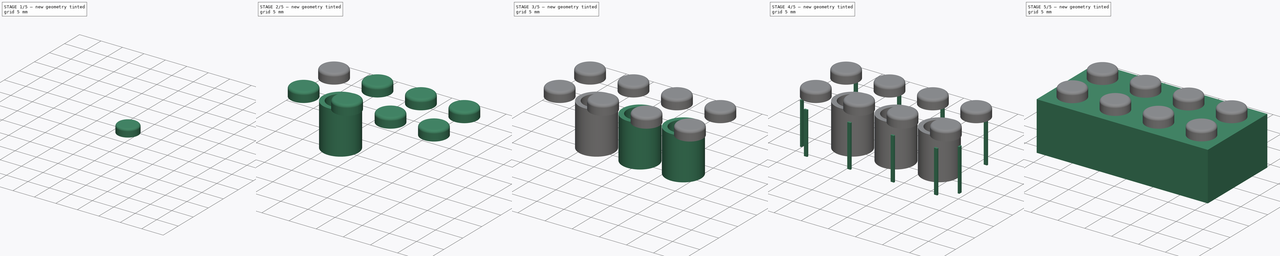
[diagram: build sequence overview — one tinted view per stage of 5, left to right]
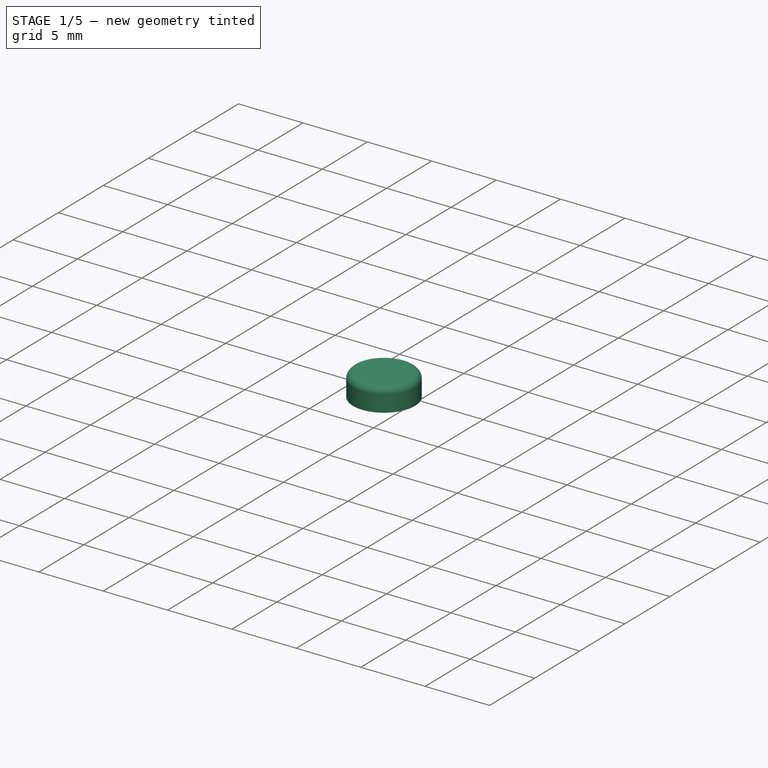
[diagram: stage 1 of 5 — iso view after this stage's code; geometry added in this stage tinted green]
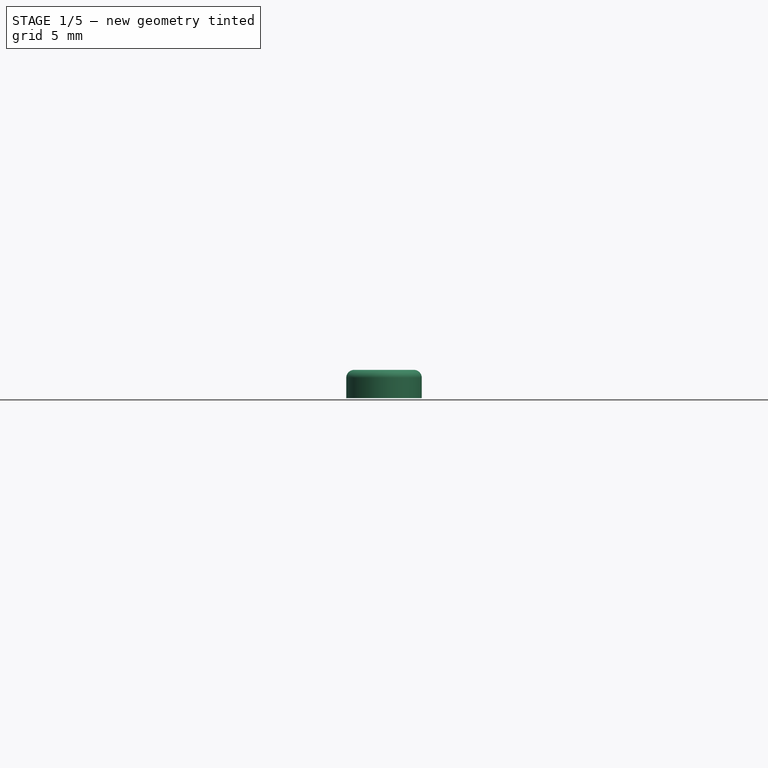
[diagram: stage 1 of 5 — front view after this stage's code; geometry added in this stage tinted green]
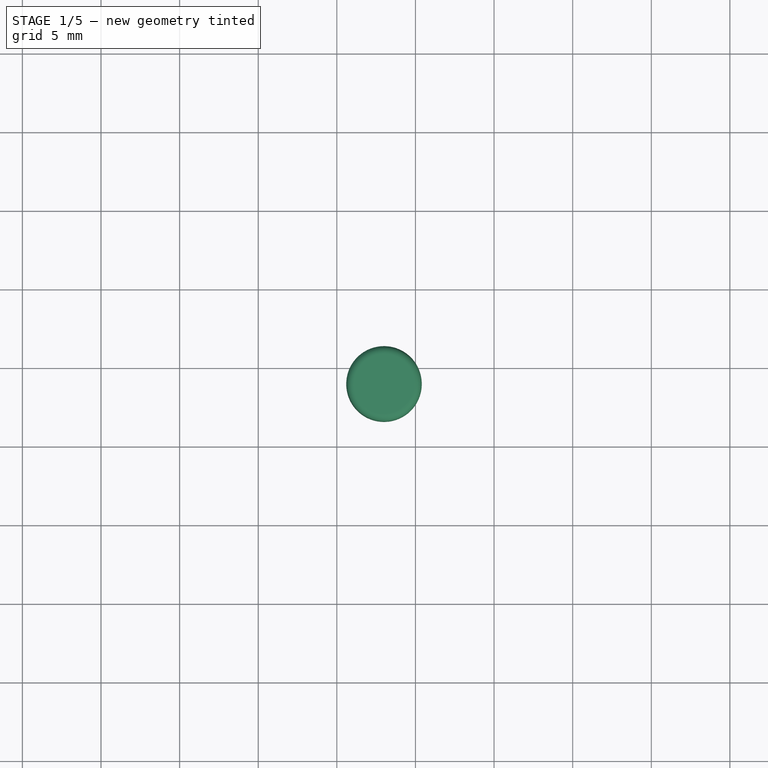
[diagram: stage 1 of 5 — top view after this stage's code; geometry added in this stage tinted green]
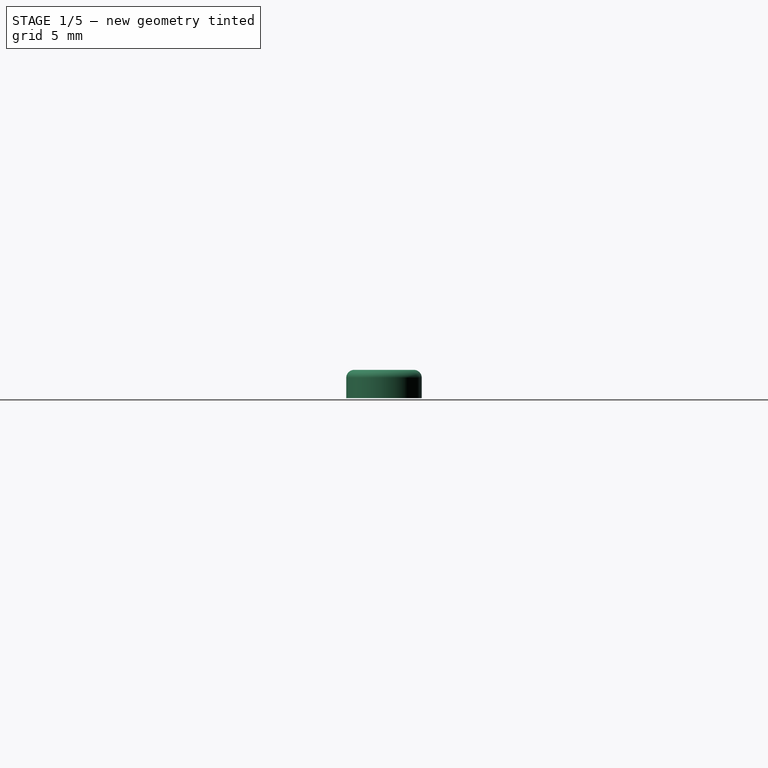
[diagram: stage 1 of 5 — right view after this stage's code; geometry added in this stage tinted green]
FCSTD DOCUMENT  (FreeCAD 0.20R29410 (Git))
Label: Parametric_Lego_Brick
License: All rights reserved
LicenseURL: http://en.wikipedia.org/wiki/All_rights_reserved
objects: Part::FeaturePython×17, Sketcher::SketchObject×5, Part::Extrusion×5, Spreadsheet::Sheet×1, Part::Thickness×1, Part::Fillet×1, Part::Compound×1
note: 30 computed .brp shape members not serialized (recipe doc carries the construction recipe); baked Part::Feature solids carry a one-line shape summary decoded from their .brp

FEATURE [Spreadsheet::Sheet] Spreadsheet
  cells = A1=LengthUnits; B1(LengthUnits)=4; C1=Length; D1(Length)==LengthUnits * HorizontalSpacing - LengthAdjustment; A2=WidthUnits; B2(WidthUnits)=2; C2=Width; D2(Width)==WidthUnits * HorizontalSpacing - LengthAdjustment; A3=HeightUnits; B3(HeightUnits)=3; C3=Height; D3(Height)==HeightUnits * VerticalSpacing; A4=HorizontalSpacing; B4(HorizontalSpacing)=8; A5=VerticalSpacing; B5(VerticalSpacing)=3; A7=LengthAdjustment; B7(LengthAdjustment)=0.2; C7=StudPlacement; D7(StudPlacement)=3.9; A8=Wall; B8(Wall)=1.2; C8=StudDiameter; D8(StudDiameter)=4.8; C9=StudHeight; D9(StudHeight)=1.8; A11=NubWidth; B11(NubWidth)=0.6; C11=TubeInner; D11(TubeInner)=4.8; A12=NubHeight; B12(NubHeight)=0.3; C12=TubeOuter; D12(TubeOuter)=6.5; A13=NubCenterToTopLeft; B13(NubCenterToTopLeft)=3.9; C13=TubePlacement; D13(TubePlacement)=7.9
FEATURE [Sketcher::SketchObject] Sketch
  FullyConstrained = true
  expr: Constraints[10] = Spreadsheet.Length
  expr: Constraints[11] = Spreadsheet.Width
  sketch-geometry (5):
    g0: LineSegment StartX=-15.9 StartY=7.9 StartZ=0 EndX=-15.9 EndY=-7.9 EndZ=0
    g1: LineSegment StartX=-15.9 StartY=-7.9 StartZ=0 EndX=15.9 EndY=-7.9 EndZ=0
    g2: LineSegment StartX=15.9 StartY=-7.9 StartZ=0 EndX=15.9 EndY=7.9 EndZ=0
    g3: LineSegment StartX=15.9 StartY=7.9 StartZ=0 EndX=-15.9 EndY=7.9 EndZ=0
    g4: GeomPoint X=0 Y=0 Z=0
  constraints (12):
    c: Coincident(g0,g1)
    c: Coincident(g1,g2)
    c: Coincident(g2,g3)
    c: Coincident(g3,g0)
    c: Horizontal(g1)
    c: Horizontal(g3)
    c: Vertical(g0)
    c: Vertical(g2)
    c: Symmetric(g1,g0,g4)
    c: Coincident(g4,g-1)
    c: DistanceX(g3,g3) = 31.8
    c: DistanceY(g2,g2) = 15.8
FEATURE [Part::Extrusion] Extrude
  Base = -> Sketch
  Dir = (0,0,1)
  DirMode = 2
  FaceMakerClass = Part::FaceMakerBullseye
  LengthFwd = 9
  LengthRev = 0
  Solid = true
  Symmetric = false
  expr: LengthFwd = Spreadsheet.Height
FEATURE [Part::Thickness] Thickness
  Faces = -> Extrude [Face5]
  Intersection = false
  Join = 0
  Mode = 0
  SelfIntersection = false
  Value = -1.2
  expr: Value = -Spreadsheet.Wall
FEATURE [Sketcher::SketchObject] Sketch001
  ExternalGeometry = -> [Thickness]
  FullyConstrained = true
  MapMode = 5
  Placement = pos=(0,0,9) rot=(0,0,1;0rad)
  Support = -> [Thickness]
  expr: Constraints[0] = Spreadsheet.StudPlacement
  expr: Constraints[1] = Spreadsheet.StudPlacement
  expr: Constraints[2] = Spreadsheet.StudDiameter
  sketch-geometry (1):
    g0: Circle CenterX=-12 CenterY=4 CenterZ=0 NormalX=0 NormalY=0 NormalZ=1 AngleXU=0 Radius=2.4
  constraints (3):
    c: DistanceY(g0,g-3) = 3.9
    c: DistanceX(g-3,g0) = 3.9
    c: Diameter(g0) = 4.8
FEATURE [Part::Extrusion] Extrude001
  Base = -> Sketch001
  Dir = (0,0,1)
  DirMode = 2
  FaceMakerClass = Part::FaceMakerBullseye
  LengthFwd = 1.8
  LengthRev = 0
  Solid = true
  Symmetric = false
  expr: LengthFwd = Spreadsheet.StudHeight
FEATURE [Part::Fillet] Fillet
  Base = -> Extrude001
  Edges = 1 edges r=0.5: [Edge3]
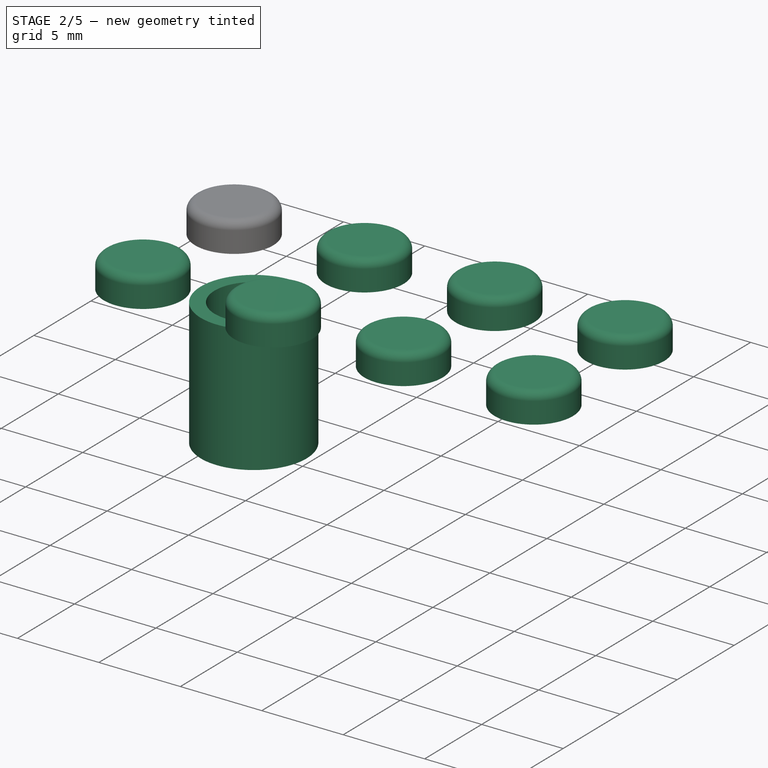
[diagram: stage 2 of 5 — iso view after this stage's code; geometry added in this stage tinted green]
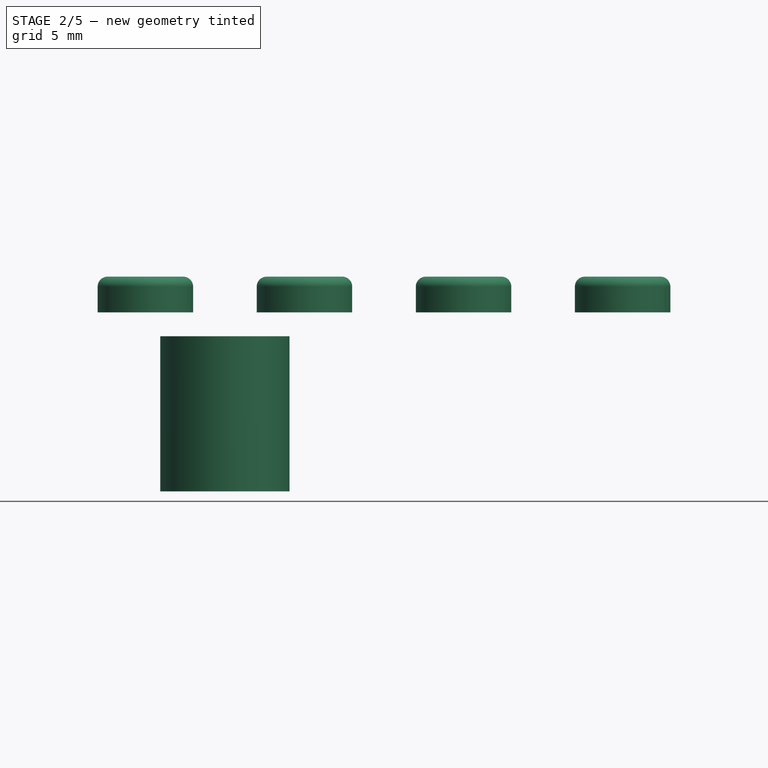
[diagram: stage 2 of 5 — front view after this stage's code; geometry added in this stage tinted green]
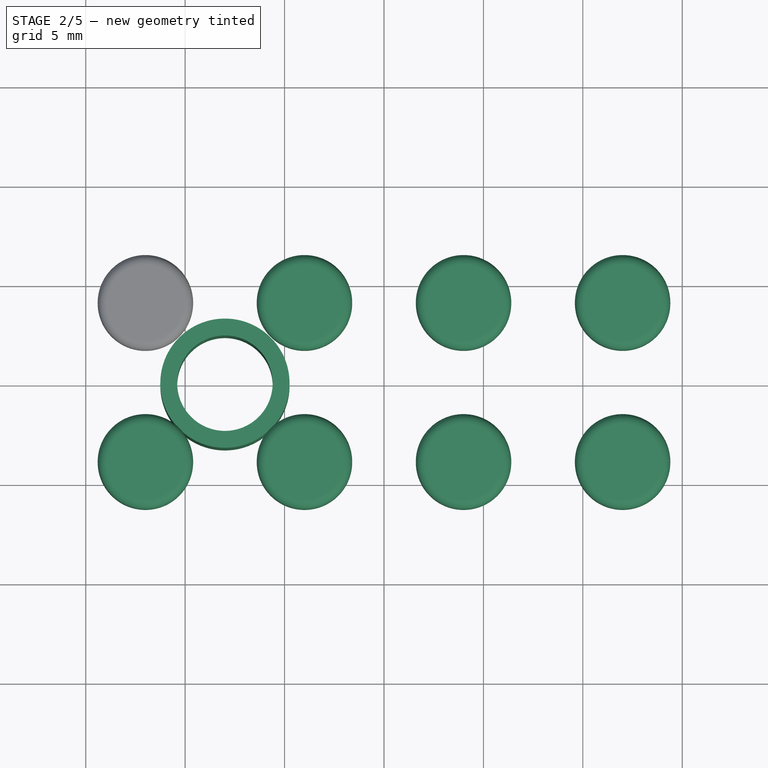
[diagram: stage 2 of 5 — top view after this stage's code; geometry added in this stage tinted green]
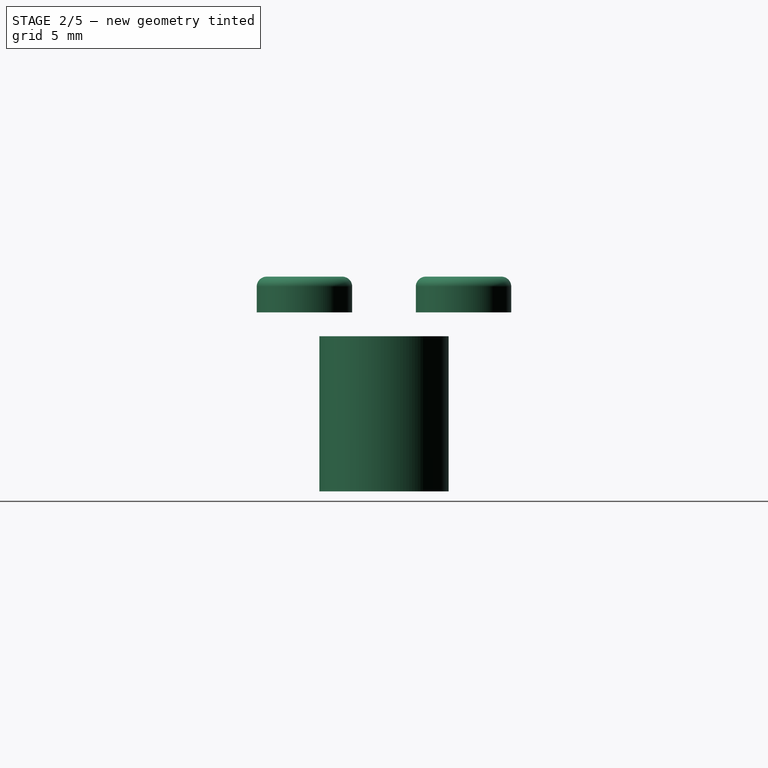
[diagram: stage 2 of 5 — right view after this stage's code; geometry added in this stage tinted green]
FEATURE [Part::FeaturePython] LinearArray  # WARN: FeaturePython — macro-defined, semantics opaque (R4)
  Alignment = 0
  CellStart = A1
  Count = 4
  Dir = (1,0,0)
  DirIsDriven = true
  DistributionLaw = 0
  DrivenProperty = 1
  EndInclusive = true
  ExposePlacement = false
  GeneratorMode = 0
  MarkerShape = 1
  MarkerSize = 0
  NumElements = 4
  OrientMode = 1
  Point = (0,0,0)
  PointIsDriven = true
  Reverse = false
  SpanEnd = 24
  SpanStart = 0
  Step = 8
  Type = lattice2LinearArray.LinearArray
  VSGVersion = 1
  Values = 0.0 | 8.0 | 16.0 | 24.0
  ValuesSource = 2
  isLattice = 1
  expr: Count = Spreadsheet.LengthUnits
  expr: SpanEnd = Spreadsheet.HorizontalSpacing * (Spreadsheet.LengthUnits - 1)
FEATURE [Part::FeaturePython] Populate  label="Populate LinearArray with Fillet"  # WARN: FeaturePython — macro-defined, semantics opaque (R4)
  Copying = 0
  ExposePlacement = false
  MarkerShape = 1
  MarkerSize = 0
  NumElements = 0
  Object = -> Fillet
  OutputCompounding = 1
  PlacementsTo = -> LinearArray
  Referencing = 1
  Type = lattice2PopulateCopies.LatticePopulateCopies
  isLattice = 0
FEATURE [Part::FeaturePython] LinearArray001  # WARN: FeaturePython — macro-defined, semantics opaque (R4)
  Alignment = 0
  CellStart = A1
  Count = 2
  Dir = (0,-1,0)
  DirIsDriven = true
  DistributionLaw = 0
  DrivenProperty = 1
  EndInclusive = true
  ExposePlacement = false
  GeneratorMode = 0
  MarkerShape = 1
  MarkerSize = 0
  NumElements = 2
  OrientMode = 1
  Point = (0,0,0)
  PointIsDriven = true
  Reverse = false
  SpanEnd = 8
  SpanStart = 0
  Step = 8
  Type = lattice2LinearArray.LinearArray
  VSGVersion = 1
  Values = 0.0 | 8.0
  ValuesSource = 2
  isLattice = 1
  expr: Count = Spreadsheet.WidthUnits
  expr: SpanEnd = Spreadsheet.HorizontalSpacing * (Spreadsheet.WidthUnits - 1)
FEATURE [Part::FeaturePython] Populate001  label="Studs"  # WARN: FeaturePython — macro-defined, semantics opaque (R4)
  Copying = 0
  ExposePlacement = false
  MarkerShape = 1
  MarkerSize = 0
  NumElements = 0
  Object = -> Populate
  OutputCompounding = 1
  PlacementsTo = -> LinearArray001
  Referencing = 1
  Type = lattice2PopulateCopies.LatticePopulateCopies
  isLattice = 0
FEATURE [Sketcher::SketchObject] Sketch002
  ExternalGeometry = -> [Thickness]
  FullyConstrained = true
  MapMode = 5
  Placement = pos=(0,0,7.8) rot=(1,0,0;3.14159rad)
  Support = -> [Thickness]
  expr: Constraints[0] = Spreadsheet.TubeInner
  expr: Constraints[1] = Spreadsheet.TubeOuter
  expr: Constraints[2] = Spreadsheet.TubePlacement
  expr: Constraints[3] = Spreadsheet.TubePlacement
  sketch-geometry (2):
    g0: Circle CenterX=-8 CenterY=0 CenterZ=0 NormalX=0 NormalY=0 NormalZ=1 AngleXU=0 Radius=3.25
    g1: Circle CenterX=-8 CenterY=0 CenterZ=0 NormalX=0 NormalY=0 NormalZ=1 AngleXU=0 Radius=2.4
  constraints (5):
    c: Diameter(g1) = 4.8
    c: Diameter(g0) = 6.5
    c: DistanceX(g-3,g0) = 7.9
    c: DistanceY(g0,g-3) = 7.9
    c: Coincident(g1,g0)
FEATURE [Part::Extrusion] Extrude002  label="TubeExtrude"
  Base = -> Sketch002
  Dir = (0,0,-7.8)
  DirLink = -> Thickness [Edge19]
  DirMode = 1
  FaceMakerClass = Part::FaceMakerBullseye
  LengthFwd = 0
  LengthRev = 0
  Solid = true
  Symmetric = false
FEATURE [Part::FeaturePython] Downgrade003  label="Leaves of Studs"  # WARN: FeaturePython — macro-defined, semantics opaque (R4)
  Base = -> Populate001
  Mode = 1
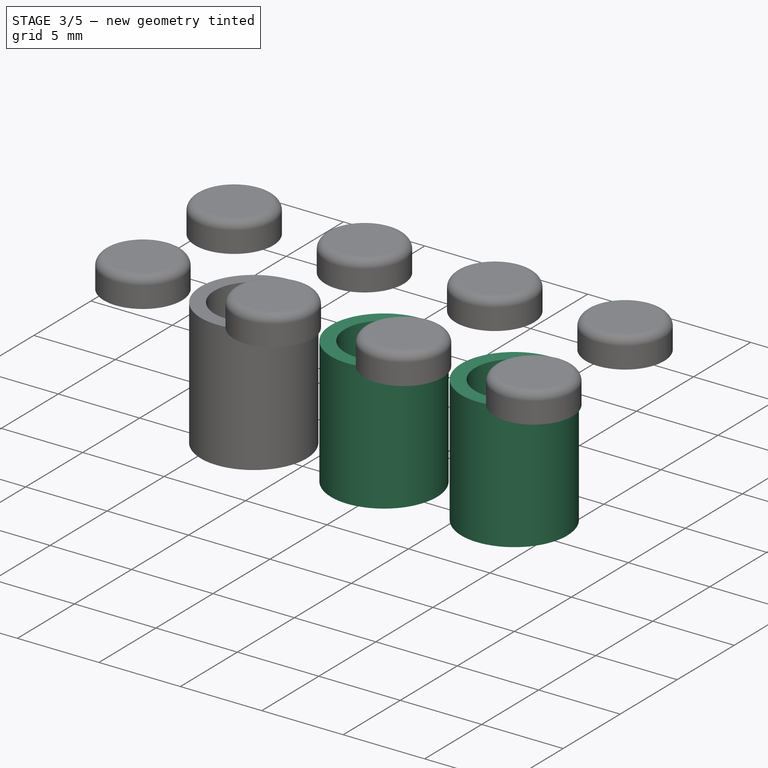
[diagram: stage 3 of 5 — iso view after this stage's code; geometry added in this stage tinted green]
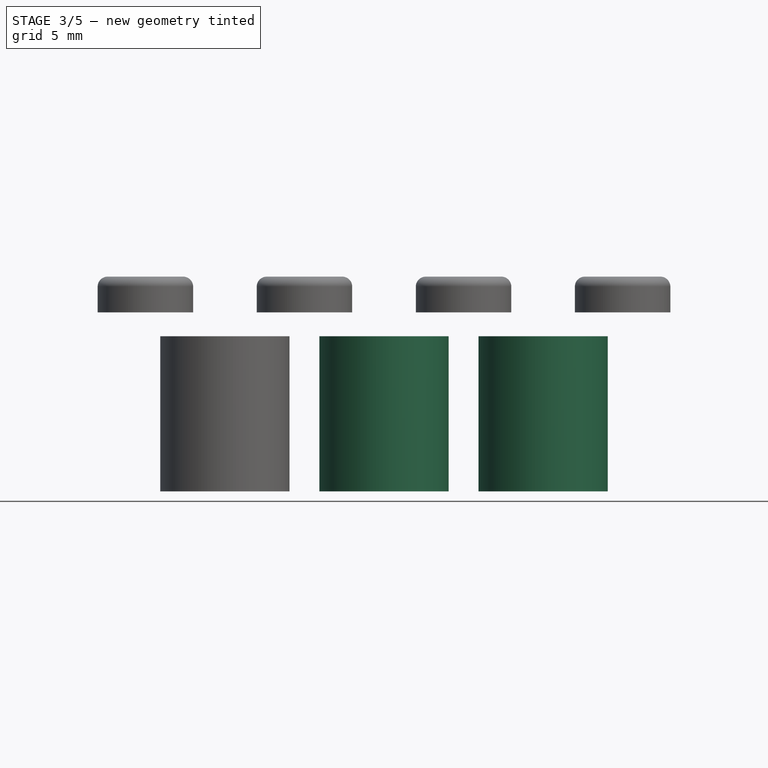
[diagram: stage 3 of 5 — front view after this stage's code; geometry added in this stage tinted green]
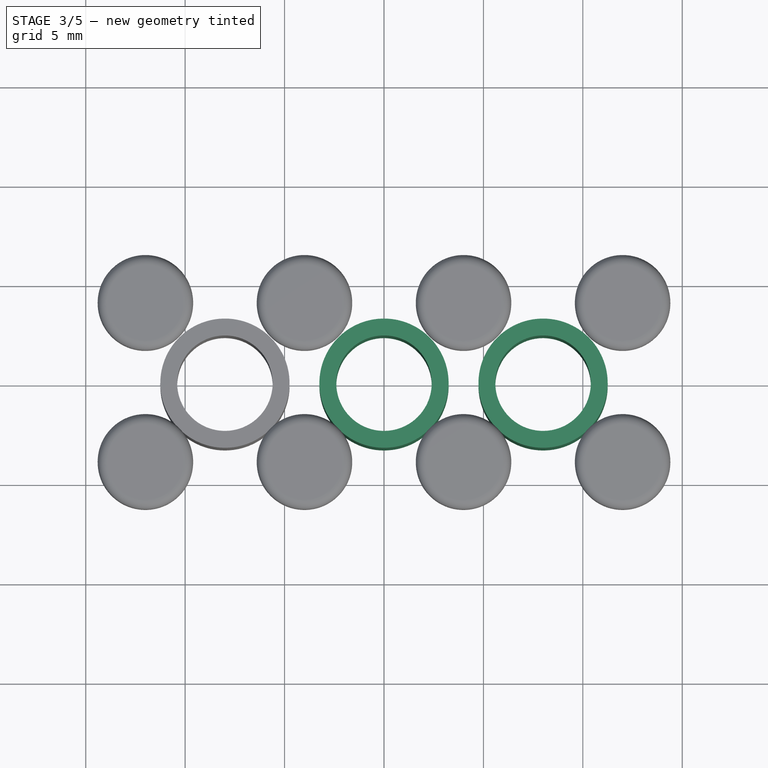
[diagram: stage 3 of 5 — top view after this stage's code; geometry added in this stage tinted green]
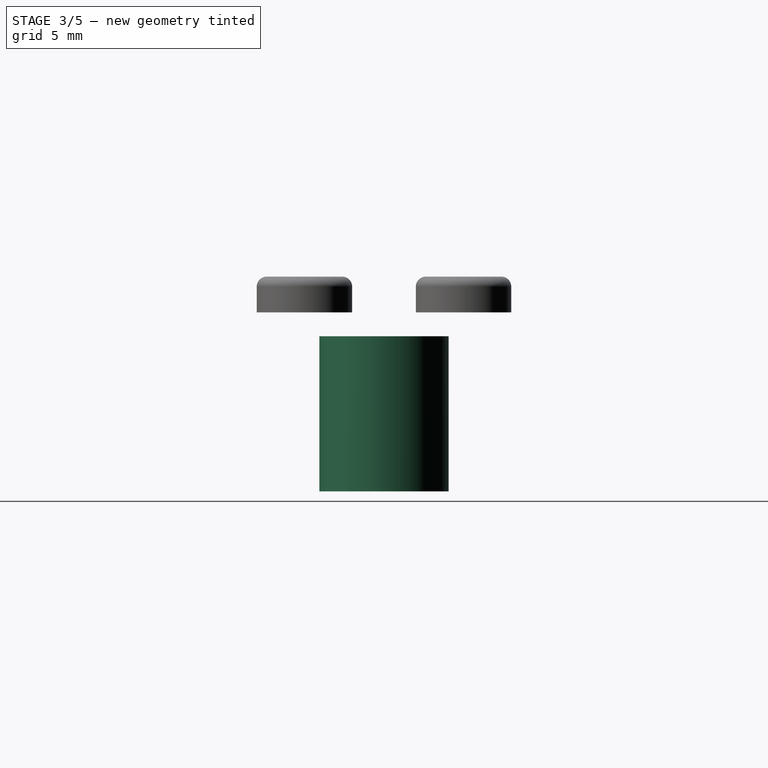
[diagram: stage 3 of 5 — right view after this stage's code; geometry added in this stage tinted green]
FEATURE [Part::FeaturePython] LinearArray002  # WARN: FeaturePython — macro-defined, semantics opaque (R4)
  Alignment = 0
  CellStart = A1
  Count = 1
  Dir = (0,1,0)
  DirIsDriven = true
  DistributionLaw = 0
  DrivenProperty = 1
  EndInclusive = true
  ExposePlacement = false
  GeneratorMode = 0
  MarkerShape = 1
  MarkerSize = 1
  NumElements = 1
  OrientMode = 1
  Point = (0,0,0)
  PointIsDriven = true
  Reverse = false
  SpanEnd = 0
  SpanStart = 0
  Step = 0
  Type = lattice2LinearArray.LinearArray
  VSGVersion = 1
  Values = 0.0
  ValuesSource = 2
  isLattice = 1
  expr: Count = Spreadsheet.WidthUnits - 1
  expr: SpanEnd = Spreadsheet.HorizontalSpacing * (Spreadsheet.WidthUnits - 2)
FEATURE [Part::FeaturePython] Populate002  label="Populate LinearArray002 with TubeExtrude"  # WARN: FeaturePython — macro-defined, semantics opaque (R4)
  Copying = 0
  ExposePlacement = false
  MarkerShape = 1
  MarkerSize = 0
  NumElements = 0
  Object = -> Extrude002
  OutputCompounding = 1
  PlacementsTo = -> LinearArray002
  Referencing = 1
  Type = lattice2PopulateCopies.LatticePopulateCopies
  isLattice = 0
FEATURE [Part::FeaturePython] LinearArray003  # WARN: FeaturePython — macro-defined, semantics opaque (R4)
  Alignment = 0
  CellStart = A1
  Count = 3
  Dir = (1,0,0)
  DirIsDriven = true
  DistributionLaw = 0
  DrivenProperty = 1
  EndInclusive = true
  ExposePlacement = false
  GeneratorMode = 0
  MarkerShape = 1
  MarkerSize = 5
  NumElements = 3
  OrientMode = 1
  Point = (0,0,0)
  PointIsDriven = true
  Reverse = false
  SpanEnd = 16
  SpanStart = 0
  Step = 8
  Type = lattice2LinearArray.LinearArray
  VSGVersion = 1
  Values = 0.0 | 8.0 | 16.0
  ValuesSource = 2
  isLattice = 1
  expr: Count = Spreadsheet.LengthUnits - 1
  expr: SpanEnd = Spreadsheet.HorizontalSpacing * (Spreadsheet.LengthUnits - 2)
FEATURE [Part::FeaturePython] Populate003  label="Tubes"  # WARN: FeaturePython — macro-defined, semantics opaque (R4)
  Copying = 0
  ExposePlacement = false
  MarkerShape = 1
  MarkerSize = 0
  NumElements = 0
  Object = -> Populate002
  OutputCompounding = 1
  PlacementsTo = -> LinearArray003
  Referencing = 1
  Type = lattice2PopulateCopies.LatticePopulateCopies
  isLattice = 0
FEATURE [Part::FeaturePython] Downgrade002  label="Leaves of Tubes"  # WARN: FeaturePython — macro-defined, semantics opaque (R4)
  Base = -> Populate003
  Mode = 1
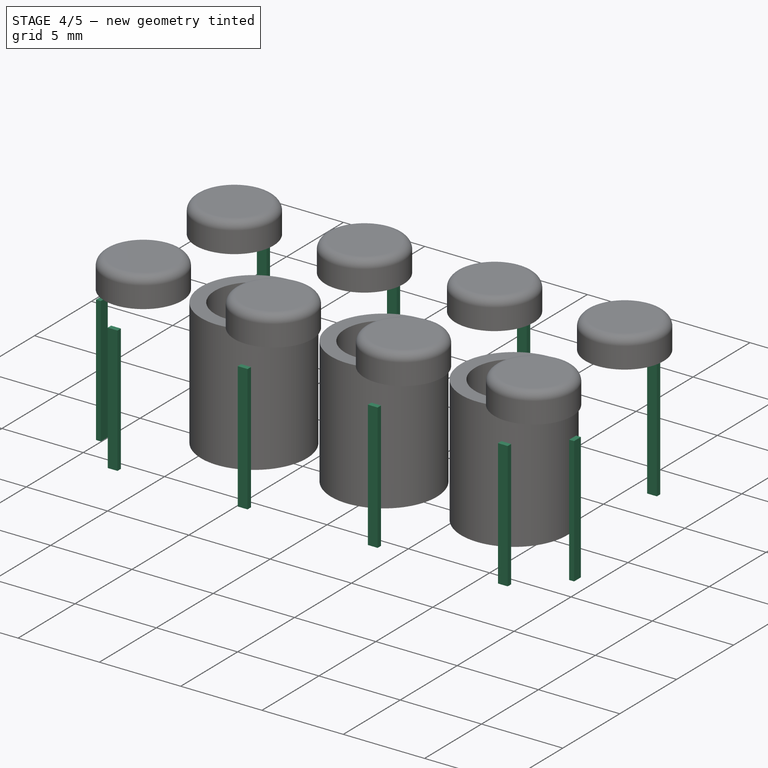
[diagram: stage 4 of 5 — iso view after this stage's code; geometry added in this stage tinted green]
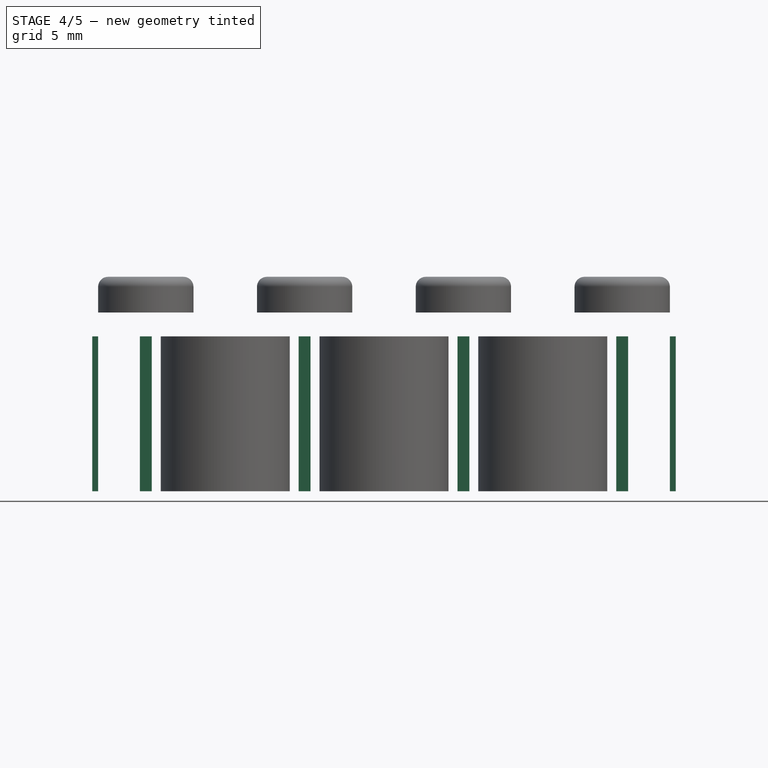
[diagram: stage 4 of 5 — front view after this stage's code; geometry added in this stage tinted green]
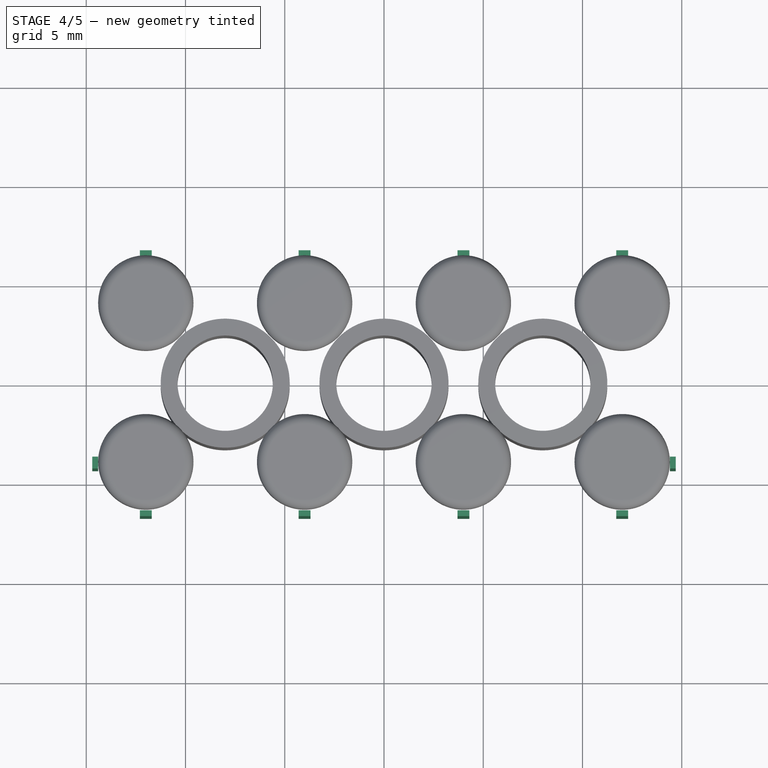
[diagram: stage 4 of 5 — top view after this stage's code; geometry added in this stage tinted green]
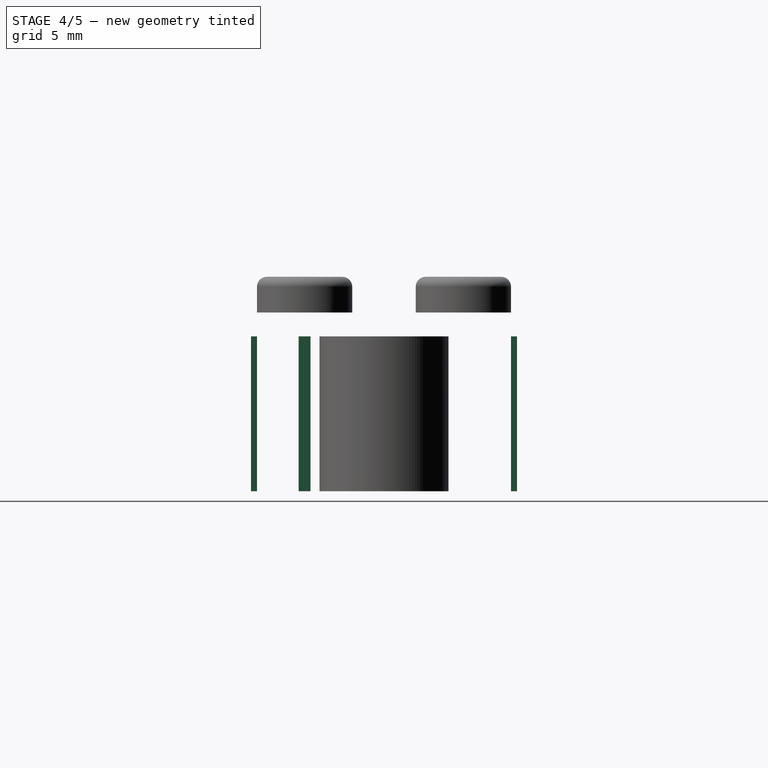
[diagram: stage 4 of 5 — right view after this stage's code; geometry added in this stage tinted green]
FEATURE [Sketcher::SketchObject] Sketch003
  ExternalGeometry = -> [Thickness]
  FullyConstrained = true
  MapMode = 5
  Placement = pos=(0,0,7.8) rot=(1,0,0;3.14159rad)
  Support = -> [Thickness]
  expr: Constraints[10] = Spreadsheet.NubCenterToTopLeft
  expr: Constraints[11] = Spreadsheet.NubWidth
  expr: Constraints[12] = Spreadsheet.NubHeight
  expr: Constraints[25] = Spreadsheet.Wall
  expr: Constraints[9] = Spreadsheet.Wall
  sketch-geometry (10):
    g0: LineSegment StartX=-12.3 StartY=6.7 StartZ=0 EndX=-12.3 EndY=6.4 EndZ=0
    g1: LineSegment StartX=-12.3 StartY=6.4 StartZ=0 EndX=-11.7 EndY=6.4 EndZ=0
    g2: LineSegment StartX=-11.7 StartY=6.4 StartZ=0 EndX=-11.7 EndY=6.7 EndZ=0
    g3: LineSegment StartX=-11.7 StartY=6.7 StartZ=0 EndX=-12.3 EndY=6.7 EndZ=0
    g4: GeomPoint X=-12 Y=6.55 Z=0
    g5: LineSegment StartX=-12.3 StartY=-6.4 StartZ=0 EndX=-12.3 EndY=-6.7 EndZ=0
    g6: LineSegment StartX=-12.3 StartY=-6.7 StartZ=0 EndX=-11.7 EndY=-6.7 EndZ=0
    g7: LineSegment StartX=-11.7 StartY=-6.7 StartZ=0 EndX=-11.7 EndY=-6.4 EndZ=0
    g8: LineSegment StartX=-11.7 StartY=-6.4 StartZ=0 EndX=-12.3 EndY=-6.4 EndZ=0
    g9: GeomPoint X=-12 Y=-6.55 Z=0
  constraints (26):
    c: Coincident(g0,g1)
    c: Coincident(g1,g2)
    c: Coincident(g2,g3)
    c: Coincident(g3,g0)
    c: Horizontal(g1)
    c: Horizontal(g3)
    c: Vertical(g0)
    c: Vertical(g2)
    c: Symmetric(g1,g0,g4)
    c: DistanceY(g0,g-3) = 1.2
    c: DistanceX(g-3,g4) = 3.9
    c: DistanceX(g0,g2) = 0.6
    c: DistanceY(g0,g0) = 0.3
    c: Coincident(g5,g6)
    c: Coincident(g6,g7)
    c: Coincident(g7,g8)
    c: Coincident(g8,g5)
    c: Horizontal(g6)
    c: Horizontal(g8)
    c: Vertical(g5)
    c: Vertical(g7)
    c: Symmetric(g6,g5,g9)
    c: Equal(g8,g1)
    c: Equal(g7,g2)
    c: Vertical(g0,g5)
    c: DistanceY(g-4,g5) = 1.2
FEATURE [Part::Extrusion] Extrude003
  Base = -> Sketch003
  Dir = (0,0,-7.8)
  DirLink = -> Thickness [Edge19]
  DirMode = 1
  FaceMakerClass = Part::FaceMakerBullseye
  LengthFwd = 0
  LengthRev = 0
  Solid = true
  Symmetric = false
FEATURE [Part::FeaturePython] LinearArray004  # WARN: FeaturePython — macro-defined, semantics opaque (R4)
  Alignment = 0
  CellStart = A1
  Count = 4
  Dir = (1,0,0)
  DirIsDriven = true
  DistributionLaw = 0
  DrivenProperty = 1
  EndInclusive = true
  ExposePlacement = false
  GeneratorMode = 0
  MarkerShape = 1
  MarkerSize = 0
  NumElements = 4
  OrientMode = 1
  Point = (0,0,0)
  PointIsDriven = true
  Reverse = false
  SpanEnd = 24
  SpanStart = 0
  Step = 8
  Type = lattice2LinearArray.LinearArray
  VSGVersion = 1
  Values = 0.0 | 8.0 | 16.0 | 24.0
  ValuesSource = 2
  isLattice = 1
  expr: Count = Spreadsheet.LengthUnits
  expr: SpanEnd = Spreadsheet.HorizontalSpacing * (Spreadsheet.LengthUnits - 1)
FEATURE [Part::FeaturePython] Populate004  label="LengthNubs"  # WARN: FeaturePython — macro-defined, semantics opaque (R4)
  Copying = 0
  ExposePlacement = false
  MarkerShape = 1
  MarkerSize = 0
  NumElements = 0
  Object = -> Extrude003
  OutputCompounding = 1
  PlacementsTo = -> LinearArray004
  Referencing = 1
  Type = lattice2PopulateCopies.LatticePopulateCopies
  isLattice = 0
FEATURE [Sketcher::SketchObject] Sketch004
  ExternalGeometry = -> [Thickness]
  FullyConstrained = true
  MapMode = 5
  Placement = pos=(0,0,7.8) rot=(1,0,0;3.14159rad)
  Support = -> [Thickness]
  expr: Constraints[18] = Spreadsheet.Wall
  expr: Constraints[19] = Spreadsheet.NubCenterToTopLeft
  expr: Constraints[20] = Spreadsheet.NubHeight
  expr: Constraints[21] = Spreadsheet.NubWidth
  expr: Constraints[25] = Spreadsheet.Wall
  sketch-geometry (10):
    g0: LineSegment StartX=-14.7 StartY=4.3 StartZ=0 EndX=-14.7 EndY=3.7 EndZ=0
    g1: LineSegment StartX=-14.7 StartY=3.7 StartZ=0 EndX=-14.4 EndY=3.7 EndZ=0
    g2: LineSegment StartX=-14.4 StartY=3.7 StartZ=0 EndX=-14.4 EndY=4.3 EndZ=0
    g3: LineSegment StartX=-14.4 StartY=4.3 StartZ=0 EndX=-14.7 EndY=4.3 EndZ=0
    g4: GeomPoint X=-14.55 Y=4 Z=0
    g5: LineSegment StartX=14.4 StartY=4.3 StartZ=0 EndX=14.4 EndY=3.7 EndZ=0
    g6: LineSegment StartX=14.4 StartY=3.7 StartZ=0 EndX=14.7 EndY=3.7 EndZ=0
    g7: LineSegment StartX=14.7 StartY=3.7 StartZ=0 EndX=14.7 EndY=4.3 EndZ=0
    g8: LineSegment StartX=14.7 StartY=4.3 StartZ=0 EndX=14.4 EndY=4.3 EndZ=0
    g9: GeomPoint X=14.55 Y=4 Z=0
  constraints (26):
    c: Coincident(g0,g1)
    c: Coincident(g1,g2)
    c: Coincident(g2,g3)
    c: Coincident(g3,g0)
    c: Horizontal(g1)
    c: Horizontal(g3)
    c: Vertical(g0)
    c: Vertical(g2)
    c: Symmetric(g1,g0,g4)
    c: Coincident(g5,g6)
    c: Coincident(g6,g7)
    c: Coincident(g7,g8)
    c: Coincident(g8,g5)
    c: Horizontal(g6)
    c: Horizontal(g8)
    c: Vertical(g5)
    c: Vertical(g7)
    c: Symmetric(g6,g5,g9)
    c: DistanceX(g-3,g0) = 1.2
    c: DistanceY(g4,g-3) = 3.9
    c: DistanceX(g3,g3) = 0.3
    c: DistanceY(g2,g2) = 0.6
    c: Equal(g2,g5)
    c: Equal(g8,g3)
    c: Horizontal(g4,g9)
    c: DistanceX(g7,g-4) = 1.2
FEATURE [Part::Extrusion] Extrude004
  Base = -> Sketch004
  Dir = (0,0,-7.8)
  DirLink = -> Thickness [Edge19]
  DirMode = 1
  FaceMakerClass = Part::FaceMakerBullseye
  LengthFwd = 0
  LengthRev = 0
  Solid = true
  Symmetric = false
FEATURE [Part::FeaturePython] Downgrade001  label="Leaves of LengthNubs"  # WARN: FeaturePython — macro-defined, semantics opaque (R4)
  Base = -> Populate004
  Mode = 1
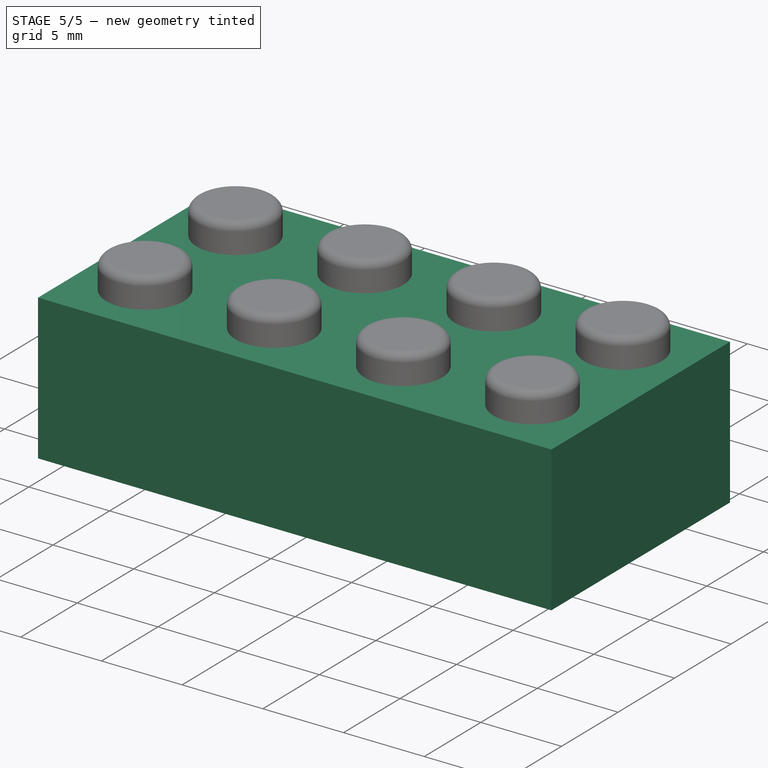
[diagram: stage 5 of 5 — iso view after this stage's code; geometry added in this stage tinted green]
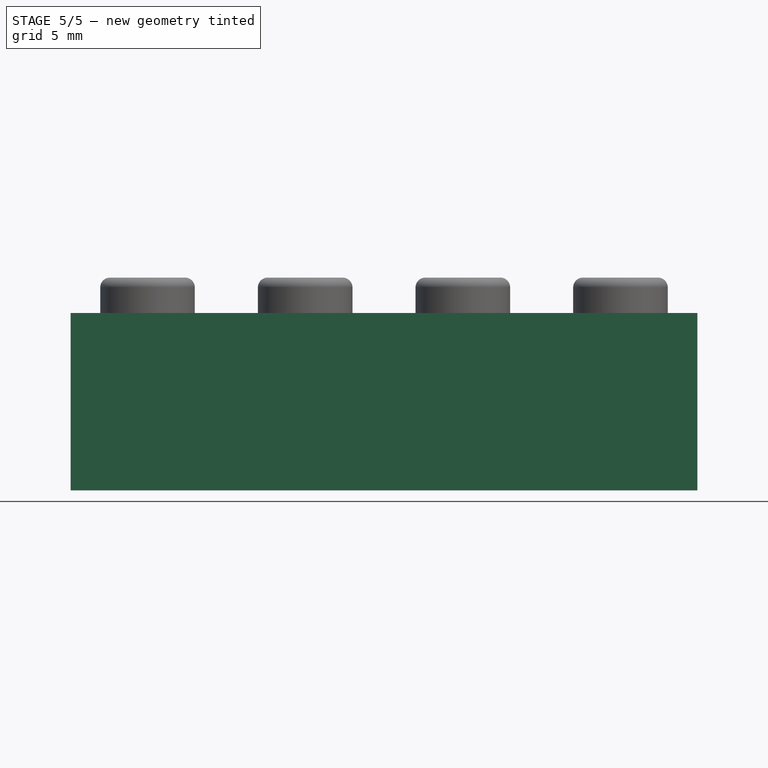
[diagram: stage 5 of 5 — front view after this stage's code; geometry added in this stage tinted green]
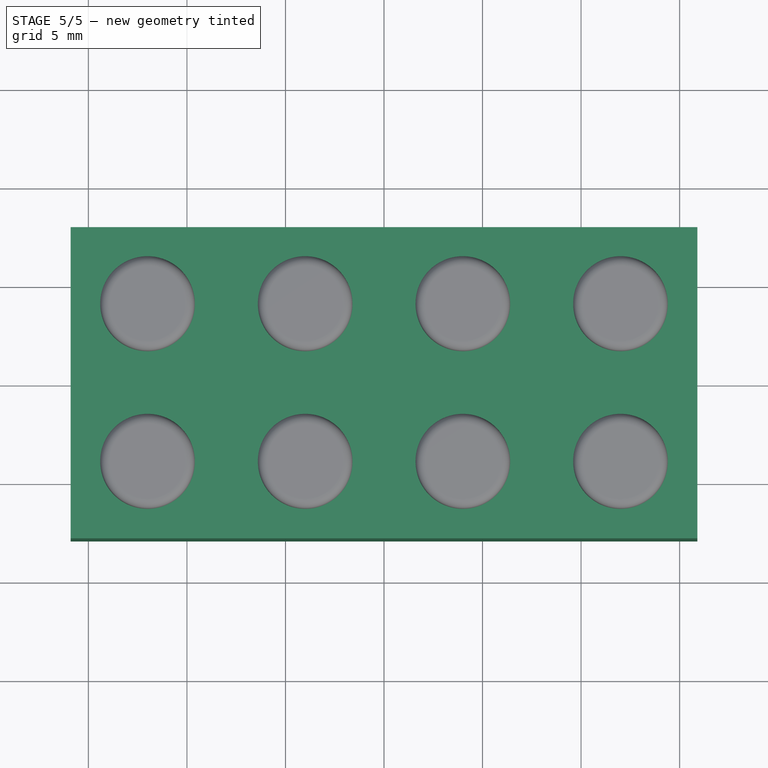
[diagram: stage 5 of 5 — top view after this stage's code; geometry added in this stage tinted green]
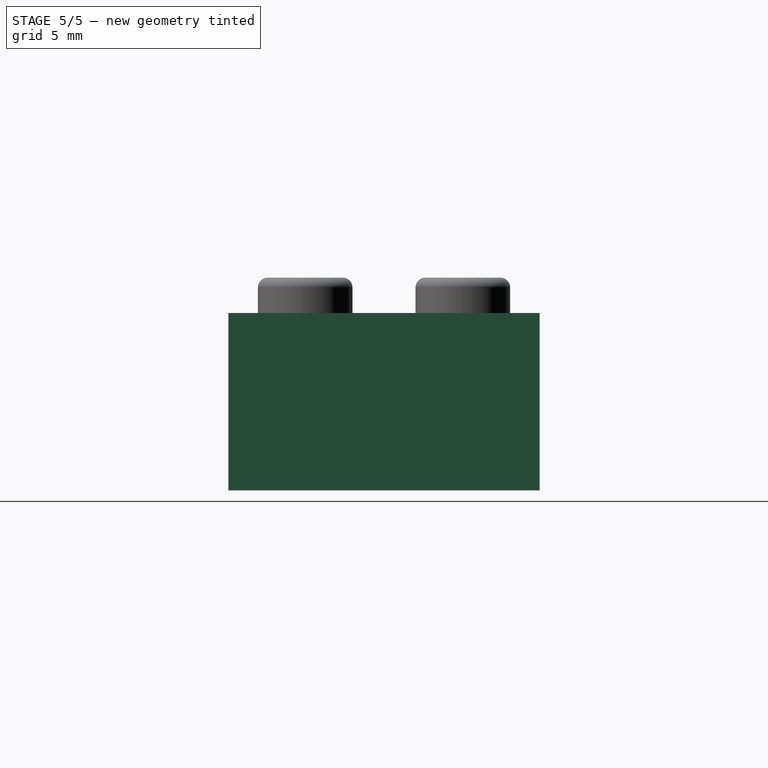
[diagram: stage 5 of 5 — right view after this stage's code; geometry added in this stage tinted green]
FEATURE [Part::FeaturePython] LinearArray005  # WARN: FeaturePython — macro-defined, semantics opaque (R4)
  Alignment = 0
  CellStart = A1
  Count = 2
  Dir = (0,1,0)
  DirIsDriven = true
  DistributionLaw = 0
  DrivenProperty = 1
  EndInclusive = true
  ExposePlacement = false
  GeneratorMode = 0
  MarkerShape = 1
  MarkerSize = 0
  NumElements = 2
  OrientMode = 1
  Point = (0,0,0)
  PointIsDriven = true
  Reverse = false
  SpanEnd = 8
  SpanStart = 0
  Step = 8
  Type = lattice2LinearArray.LinearArray
  VSGVersion = 1
  Values = 0.0 | 8.0
  ValuesSource = 2
  isLattice = 1
  expr: Count = Spreadsheet.WidthUnits
  expr: SpanEnd = Spreadsheet.HorizontalSpacing * (Spreadsheet.WidthUnits - 1)
FEATURE [Part::FeaturePython] Populate005  label="WidthNubs"  # WARN: FeaturePython — macro-defined, semantics opaque (R4)
  Copying = 0
  ExposePlacement = false
  MarkerShape = 1
  MarkerSize = 0
  NumElements = 0
  Object = -> Extrude004
  OutputCompounding = 1
  PlacementsTo = -> LinearArray005
  Referencing = 1
  Type = lattice2PopulateCopies.LatticePopulateCopies
  isLattice = 0
FEATURE [Part::FeaturePython] Downgrade  label="Leaves of WidthNubs"  # WARN: FeaturePython — macro-defined, semantics opaque (R4)
  Base = -> Populate005
  Mode = 1
FEATURE [Part::Compound] Compound
  Links = -> [Thickness,Downgrade,Downgrade001,Downgrade002,Downgrade003]
FEATURE [Part::FeaturePython] FuseCompound  # WARN: FeaturePython — macro-defined, semantics opaque (R4)
  Base = -> Compound
  recomputeQuota = -1
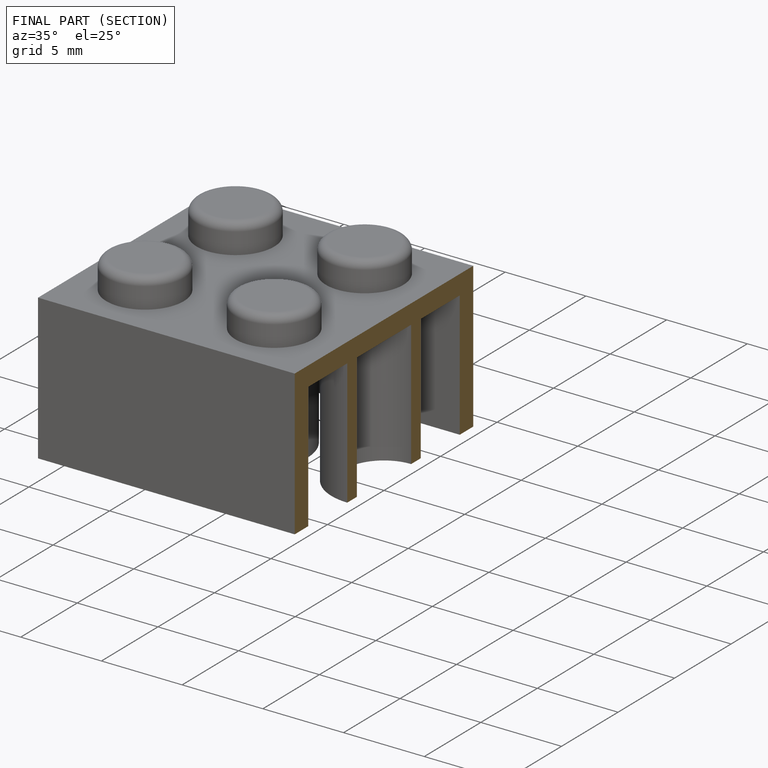
[diagram: finished part — half-section view (interior)]
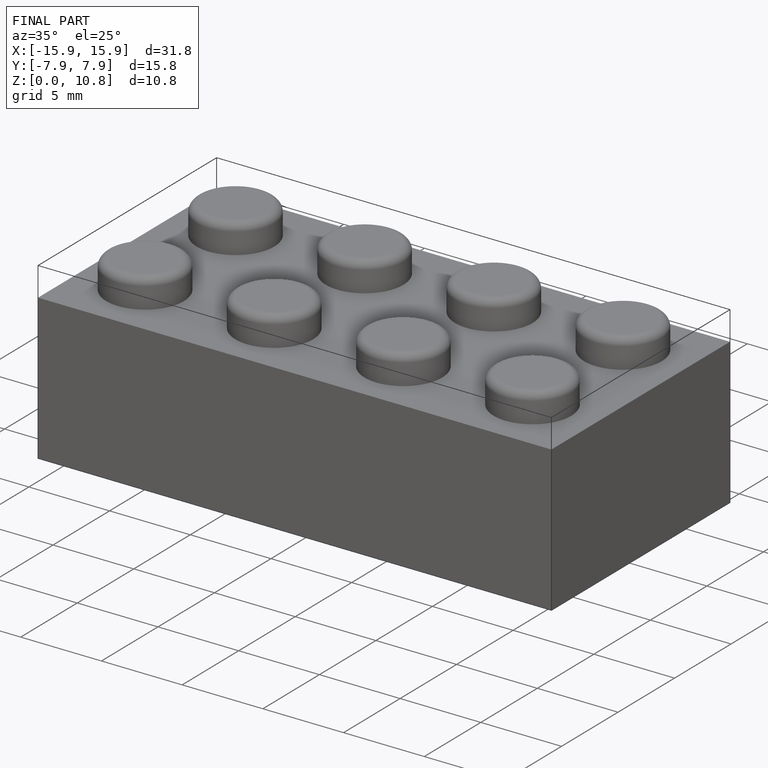
[diagram: finished part — iso view with bounding-box wireframe]
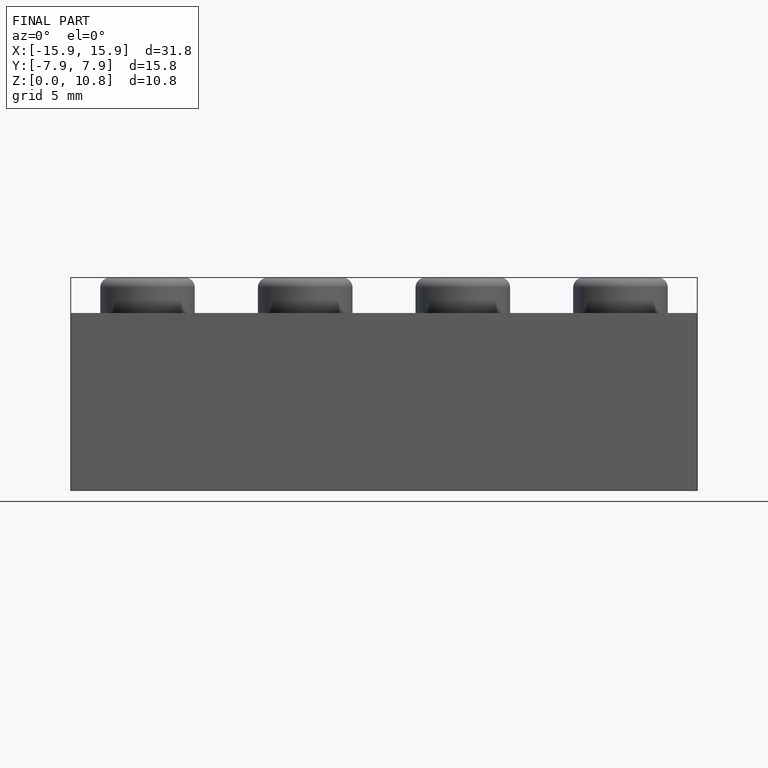
[diagram: finished part — front view with bounding-box wireframe]
